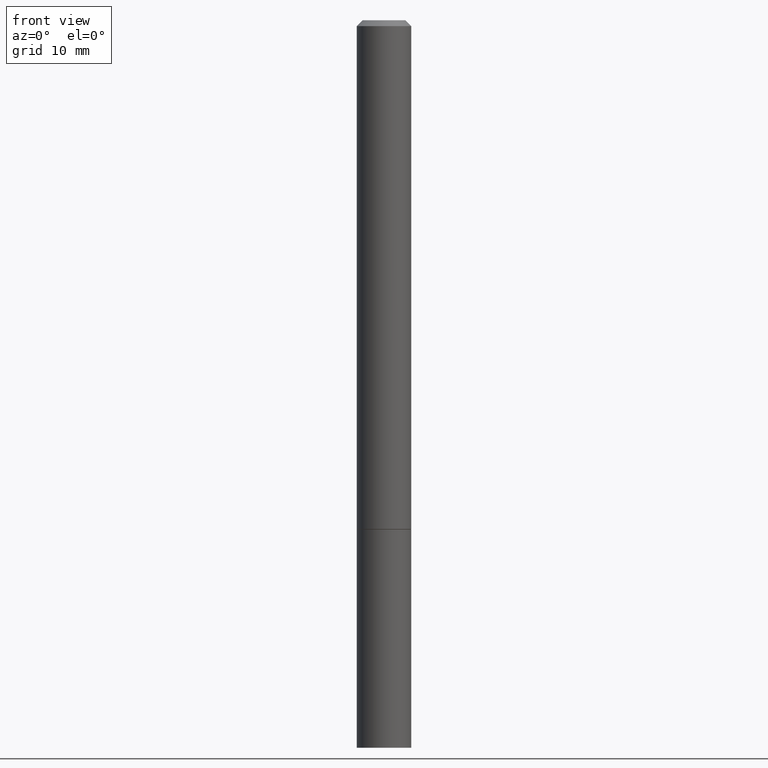
[diagram: clean part render]
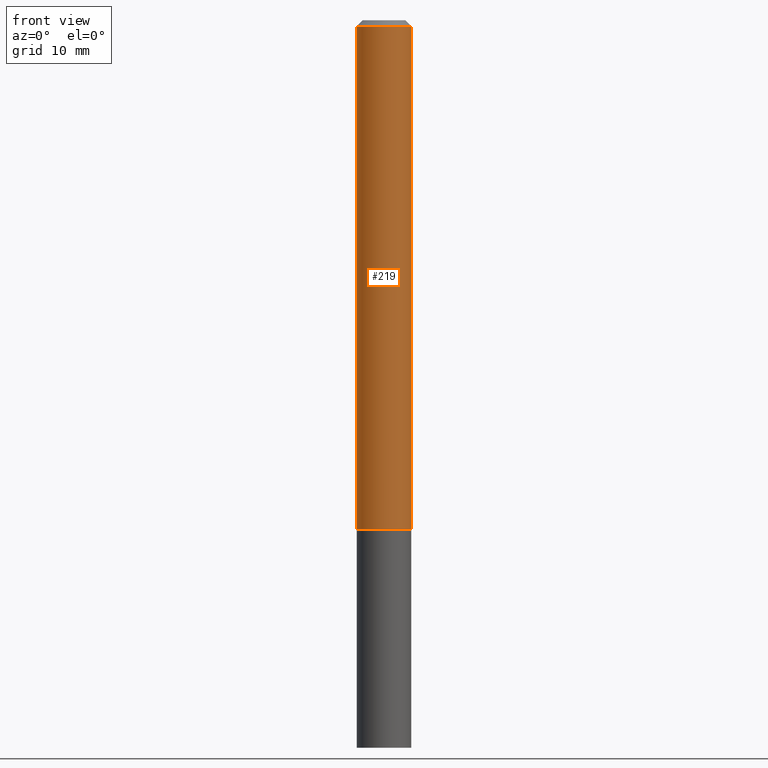
[diagram: same view with one face highlighted and labeled with its STEP entity id]
A machine part, front view. The second image highlights one B-rep face of the part: STEP entity #219.
In plain terms, the highlighted cylindrical surface (edge-blend (fillet) strip) has radius 2.3812 mm, axis along (-0, 0, 1).
Its self-contained STEP definition (entity closure, byte-faithful):
#2 = DIRECTION ( 'NONE',  ( 1.000000000000000000, -6.982962677686266711E-15, 0.000000000000000000 ) ) ;
#15 = CARTESIAN_POINT ( 'NONE',  ( 0.09374999999999979183, -7.130013140679426072E-16, -0.02000000000000002470 ) ) ;
#19 = DIRECTION ( 'NONE',  ( -2.445468806185136877E-29, 3.491481338843145188E-15, 1.000000000000000000 ) ) ;
#23 = ORIENTED_EDGE ( 'NONE', *, *, #307, .T. ) ;
#25 = CYLINDRICAL_SURFACE ( 'NONE', #325, 0.09374999999999988898 ) ;
#30 = VERTEX_POINT ( 'NONE', #180 ) ;
#34 = CARTESIAN_POINT ( 'NONE',  ( 0.09374999999999988898, -6.546527510330866166E-16, 4.571415727308684201E-30 ) ) ;
#36 = DIRECTION ( 'NONE',  ( 1.000000000000000000, -6.982962677686261189E-15, 0.000000000000000000 ) ) ;
#51 = DIRECTION ( 'NONE',  ( -2.445468806185136597E-29, 3.491481338843145583E-15, 1.000000000000000000 ) ) ;
#54 = AXIS2_PLACEMENT_3D ( 'NONE', #75, #51, #2 ) ;
#75 = CARTESIAN_POINT ( 'NONE',  ( 4.890937612370279289E-31, -6.982962677686299005E-17, -0.02000000000000002470 ) ) ;
#83 = CARTESIAN_POINT ( 'NONE',  ( -0.09375000000000001388, -2.422081429431664218E-15, -1.749000000000000110 ) ) ;
#84 = EDGE_LOOP ( 'NONE', ( #300, #23, #232, #205 ) ) ;
#101 = VERTEX_POINT ( 'NONE', #237 ) ;
#106 = AXIS2_PLACEMENT_3D ( 'NONE', #143, #149, #36 ) ;
#110 = DIRECTION ( 'NONE',  ( -2.445468806185136597E-29, 3.491481338843145583E-15, 1.000000000000000000 ) ) ;
#119 = CIRCLE ( 'NONE', #54, 0.09374999999999979183 ) ;
#143 = CARTESIAN_POINT ( 'NONE',  ( 4.277124942017804562E-29, -6.106600861636661664E-15, -1.749000000000000110 ) ) ;
#149 = DIRECTION ( 'NONE',  ( -2.445468806185136597E-29, 3.491481338843145583E-15, 1.000000000000000000 ) ) ;
#158 = EDGE_CURVE ( 'NONE', #101, #344, #119, .T. ) ;
#160 = CIRCLE ( 'NONE', #106, 0.09375000000000001388 ) ;
#171 = VECTOR ( 'NONE', #236, 39.37007874015748143 ) ;
#180 = CARTESIAN_POINT ( 'NONE',  ( 0.09375000000000001388, -6.761253612669749168E-15, -1.749000000000000110 ) ) ;
#189 = CARTESIAN_POINT ( 'NONE',  ( 0.000000000000000000, 0.000000000000000000, 0.000000000000000000 ) ) ;
#204 = EDGE_CURVE ( 'NONE', #252, #101, #247, .T. ) ;
#205 = ORIENTED_EDGE ( 'NONE', *, *, #158, .F. ) ;
#219 = ADVANCED_FACE ( 'NONE', ( #253 ), #25, .T. ) ;
#232 = ORIENTED_EDGE ( 'NONE', *, *, #356, .T. ) ;
#236 = DIRECTION ( 'NONE',  ( -2.445468806185136877E-29, 3.491481338843145188E-15, 1.000000000000000000 ) ) ;
#237 = CARTESIAN_POINT ( 'NONE',  ( -0.09374999999999979183, 5.848231242562231212E-16, -0.02000000000000002470 ) ) ;
#243 = DIRECTION ( 'NONE',  ( 1.000000000000000000, -6.982962677686265133E-15, 4.876176775795935793E-29 ) ) ;
#247 = LINE ( 'NONE', #279, #342 ) ;
#252 = VERTEX_POINT ( 'NONE', #83 ) ;
#253 = FACE_OUTER_BOUND ( 'NONE', #84, .T. ) ;
#279 = CARTESIAN_POINT ( 'NONE',  ( -0.09374999999999988898, 6.661338147750931354E-16, -4.611501647113968390E-30 ) ) ;
#294 = LINE ( 'NONE', #34, #171 ) ;
#300 = ORIENTED_EDGE ( 'NONE', *, *, #204, .F. ) ;
#307 = EDGE_CURVE ( 'NONE', #252, #30, #160, .T. ) ;
#325 = AXIS2_PLACEMENT_3D ( 'NONE', #189, #110, #243 ) ;
#342 = VECTOR ( 'NONE', #19, 39.37007874015748143 ) ;
#344 = VERTEX_POINT ( 'NONE', #15 ) ;
#356 = EDGE_CURVE ( 'NONE', #30, #344, #294, .T. ) ;